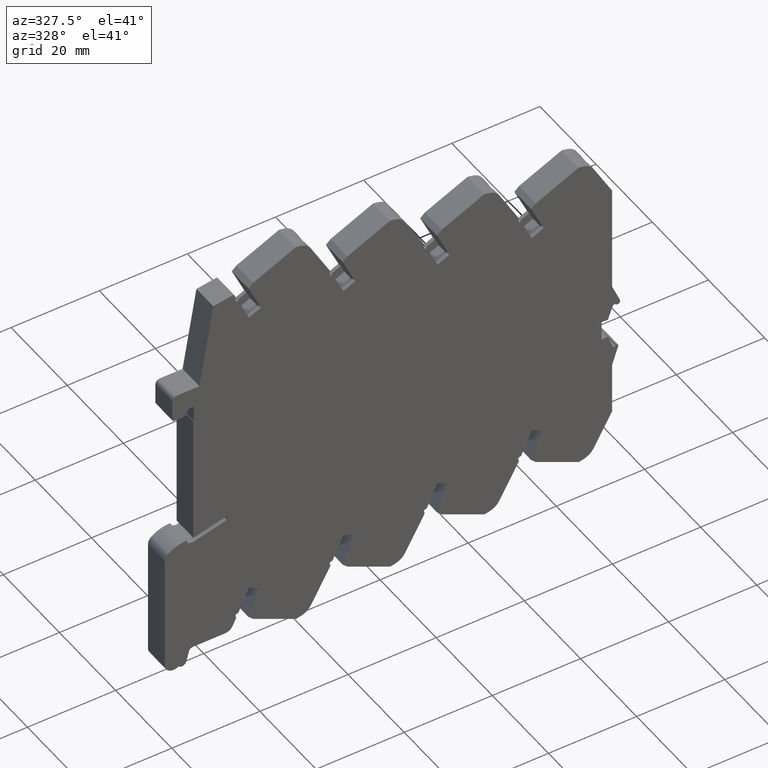
[diagram: clean part render]
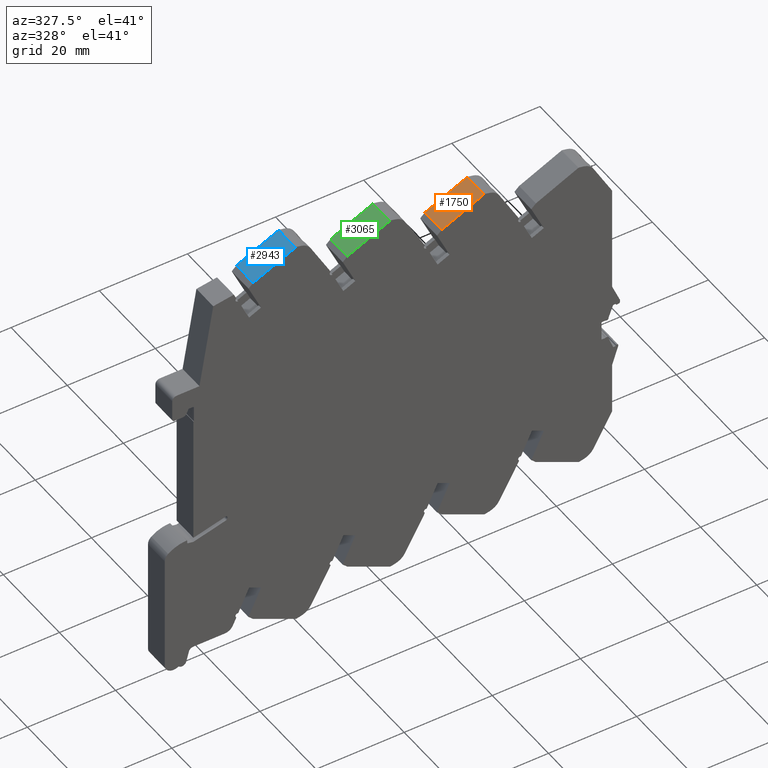
[diagram: same view with three faces highlighted in distinct colors, each labeled with its STEP entity id]
A machine part, auxiliary view with three faces highlighted in distinct colors.
Their STEP definitions:

[orange] entity #1750 — the highlighted planar face has unit normal (0.4226, 0, -0.9063).
#45 = LINE ( 'NONE', #6601, #1877 ) ;
#110 = CARTESIAN_POINT ( 'NONE',  ( -3.000000000000000000, 37.04256000000000171, 12.06949300000000669 ) ) ;
#648 = ORIENTED_EDGE ( 'NONE', *, *, #5057, .F. ) ;
#960 = LINE ( 'NONE', #6047, #2616 ) ;
#990 = VERTEX_POINT ( 'NONE', #6366 ) ;
#1356 = VERTEX_POINT ( 'NONE', #4484 ) ;
#1357 = LINE ( 'NONE', #2086, #5029 ) ;
#1750 = ADVANCED_FACE ( 'NONE', ( #4226 ), #4184, .F. ) ;
#1877 = VECTOR ( 'NONE', #8511, 1000.000000000000000 ) ;
#2086 = CARTESIAN_POINT ( 'NONE',  ( 3.000000000000000000, 37.04256000000000171, 12.06949300000000669 ) ) ;
#2087 = AXIS2_PLACEMENT_3D ( 'NONE', #7422, #4139, #3582 ) ;
#2170 = EDGE_CURVE ( 'NONE', #990, #7539, #5555, .T. ) ;
#2616 = VECTOR ( 'NONE', #7388, 1000.000000000000114 ) ;
#3582 = DIRECTION ( 'NONE',  ( 1.000000000000000000, 0.000000000000000000, 0.000000000000000000 ) ) ;
#3817 = EDGE_CURVE ( 'NONE', #7684, #1356, #960, .T. ) ;
#4139 = DIRECTION ( 'NONE',  ( 0.000000000000000000, -0.9063078068647751895, 0.4226182192191449971 ) ) ;
#4184 = PLANE ( 'NONE',  #2087 ) ;
#4226 = FACE_OUTER_BOUND ( 'NONE', #5897, .T. ) ;
#4484 = CARTESIAN_POINT ( 'NONE',  ( -3.000000000000000000, 41.52747229475459534, 21.68741963210341694 ) ) ;
#4768 = CARTESIAN_POINT ( 'NONE',  ( 3.000000000000000000, 37.04256000000000171, 12.06949300000000669 ) ) ;
#4828 = ORIENTED_EDGE ( 'NONE', *, *, #2170, .F. ) ;
#5029 = VECTOR ( 'NONE', #6619, 1000.000000000000000 ) ;
#5057 = EDGE_CURVE ( 'NONE', #7539, #1356, #45, .T. ) ;
#5555 = LINE ( 'NONE', #4768, #7714 ) ;
#5888 = ORIENTED_EDGE ( 'NONE', *, *, #3817, .T. ) ;
#5897 = EDGE_LOOP ( 'NONE', ( #5888, #648, #4828, #6706 ) ) ;
#6047 = CARTESIAN_POINT ( 'NONE',  ( -3.000000000000000000, 37.04256000000000171, 12.06949300000000669 ) ) ;
#6366 = CARTESIAN_POINT ( 'NONE',  ( 3.000000000000000000, 37.04256000000000171, 12.06949300000000669 ) ) ;
#6601 = CARTESIAN_POINT ( 'NONE',  ( 3.000000000000000000, 41.52747229475459534, 21.68741963210341694 ) ) ;
#6619 = DIRECTION ( 'NONE',  ( -1.000000000000000000, 0.000000000000000000, 0.000000000000000000 ) ) ;
#6706 = ORIENTED_EDGE ( 'NONE', *, *, #6858, .T. ) ;
#6804 = DIRECTION ( 'NONE',  ( 0.000000000000000000, 0.4226182192191450526, 0.9063078068647751895 ) ) ;
#6858 = EDGE_CURVE ( 'NONE', #990, #7684, #1357, .T. ) ;
#7167 = CARTESIAN_POINT ( 'NONE',  ( 3.000000000000000000, 41.52747229475459534, 21.68741963210341694 ) ) ;
#7388 = DIRECTION ( 'NONE',  ( 0.000000000000000000, 0.4226182192191450526, 0.9063078068647751895 ) ) ;
#7422 = CARTESIAN_POINT ( 'NONE',  ( 3.000000000000000000, 37.04256000000000171, 12.06949300000000669 ) ) ;
#7539 = VERTEX_POINT ( 'NONE', #7167 ) ;
#7684 = VERTEX_POINT ( 'NONE', #110 ) ;
#7714 = VECTOR ( 'NONE', #6804, 1000.000000000000114 ) ;
#8511 = DIRECTION ( 'NONE',  ( -1.000000000000000000, 0.000000000000000000, 0.000000000000000000 ) ) ;

[blue] entity #2943 — the highlighted planar face has unit normal (0.4226, 0, -0.9063).
#308 = DIRECTION ( 'NONE',  ( 0.000000000000000000, 0.4226182192191442755, 0.9063078068647755225 ) ) ;
#558 = EDGE_CURVE ( 'NONE', #7438, #3291, #817, .T. ) ;
#634 = FACE_OUTER_BOUND ( 'NONE', #8238, .T. ) ;
#674 = PLANE ( 'NONE',  #2912 ) ;
#724 = DIRECTION ( 'NONE',  ( 0.000000000000000000, -0.9063078068647757446, 0.4226182192191438314 ) ) ;
#817 = LINE ( 'NONE', #6080, #6928 ) ;
#1042 = LINE ( 'NONE', #8294, #7809 ) ;
#2398 = CARTESIAN_POINT ( 'NONE',  ( -3.000000000000000000, 48.06747229475460159, -21.08258036789659329 ) ) ;
#2507 = CARTESIAN_POINT ( 'NONE',  ( 3.000000000000000000, 48.06747229475460159, -21.08258036789659329 ) ) ;
#2912 = AXIS2_PLACEMENT_3D ( 'NONE', #7324, #724, #3355 ) ;
#2932 = DIRECTION ( 'NONE',  ( -1.000000000000000000, 0.000000000000000000, 0.000000000000000000 ) ) ;
#2943 = ADVANCED_FACE ( 'NONE', ( #634 ), #674, .F. ) ;
#3084 = ORIENTED_EDGE ( 'NONE', *, *, #7325, .F. ) ;
#3106 = CARTESIAN_POINT ( 'NONE',  ( 3.000000000000000000, 43.58256000000000085, -30.70050699999999111 ) ) ;
#3291 = VERTEX_POINT ( 'NONE', #2398 ) ;
#3355 = DIRECTION ( 'NONE',  ( 1.000000000000000000, 0.000000000000000000, 0.000000000000000000 ) ) ;
#3860 = LINE ( 'NONE', #8355, #8137 ) ;
#4011 = CARTESIAN_POINT ( 'NONE',  ( -3.000000000000000000, 43.58256000000000085, -30.70050699999999111 ) ) ;
#4196 = EDGE_CURVE ( 'NONE', #6129, #3291, #3860, .T. ) ;
#4830 = ORIENTED_EDGE ( 'NONE', *, *, #4196, .T. ) ;
#5908 = VERTEX_POINT ( 'NONE', #3106 ) ;
#5959 = ORIENTED_EDGE ( 'NONE', *, *, #558, .F. ) ;
#6080 = CARTESIAN_POINT ( 'NONE',  ( 3.000000000000000000, 48.06747229475460159, -21.08258036789659329 ) ) ;
#6129 = VERTEX_POINT ( 'NONE', #4011 ) ;
#6262 = ORIENTED_EDGE ( 'NONE', *, *, #7524, .T. ) ;
#6928 = VECTOR ( 'NONE', #2932, 1000.000000000000000 ) ;
#7324 = CARTESIAN_POINT ( 'NONE',  ( 3.000000000000000000, 43.58256000000000085, -30.70050699999999111 ) ) ;
#7325 = EDGE_CURVE ( 'NONE', #5908, #7438, #1042, .T. ) ;
#7438 = VERTEX_POINT ( 'NONE', #2507 ) ;
#7524 = EDGE_CURVE ( 'NONE', #5908, #6129, #7686, .T. ) ;
#7686 = LINE ( 'NONE', #7771, #8498 ) ;
#7771 = CARTESIAN_POINT ( 'NONE',  ( 3.000000000000000000, 43.58256000000000085, -30.70050699999999111 ) ) ;
#7809 = VECTOR ( 'NONE', #308, 1000.000000000000114 ) ;
#8137 = VECTOR ( 'NONE', #8312, 1000.000000000000114 ) ;
#8238 = EDGE_LOOP ( 'NONE', ( #4830, #5959, #3084, #6262 ) ) ;
#8294 = CARTESIAN_POINT ( 'NONE',  ( 3.000000000000000000, 43.58256000000000085, -30.70050699999999111 ) ) ;
#8312 = DIRECTION ( 'NONE',  ( 0.000000000000000000, 0.4226182192191442755, 0.9063078068647755225 ) ) ;
#8333 = DIRECTION ( 'NONE',  ( -1.000000000000000000, 0.000000000000000000, 0.000000000000000000 ) ) ;
#8355 = CARTESIAN_POINT ( 'NONE',  ( -3.000000000000000000, 43.58256000000000085, -30.70050699999999111 ) ) ;
#8498 = VECTOR ( 'NONE', #8333, 1000.000000000000000 ) ;

[green] entity #3065 — the highlighted planar face has unit normal (0.4226, 0, -0.9063).
#403 = EDGE_CURVE ( 'NONE', #1395, #6507, #3842, .T. ) ;
#658 = CARTESIAN_POINT ( 'NONE',  ( 3.000000000000000000, 40.31255999999999773, -9.315506999999993099 ) ) ;
#893 = DIRECTION ( 'NONE',  ( -1.000000000000000000, 0.000000000000000000, 0.000000000000000000 ) ) ;
#1395 = VERTEX_POINT ( 'NONE', #7129 ) ;
#1413 = CARTESIAN_POINT ( 'NONE',  ( -3.000000000000000000, 40.31255999999999773, -9.315506999999993099 ) ) ;
#1504 = ORIENTED_EDGE ( 'NONE', *, *, #5299, .F. ) ;
#1673 = EDGE_LOOP ( 'NONE', ( #2958, #6297, #1504, #8371 ) ) ;
#2296 = LINE ( 'NONE', #4276, #5366 ) ;
#2620 = FACE_OUTER_BOUND ( 'NONE', #1673, .T. ) ;
#2747 = PLANE ( 'NONE',  #4682 ) ;
#2789 = DIRECTION ( 'NONE',  ( 0.000000000000000000, -0.9063078068647748564, 0.4226182192191458853 ) ) ;
#2920 = LINE ( 'NONE', #4296, #3046 ) ;
#2958 = ORIENTED_EDGE ( 'NONE', *, *, #3922, .T. ) ;
#2966 = VERTEX_POINT ( 'NONE', #1413 ) ;
#3046 = VECTOR ( 'NONE', #893, 1000.000000000000000 ) ;
#3065 = ADVANCED_FACE ( 'NONE', ( #2620 ), #2747, .F. ) ;
#3086 = VECTOR ( 'NONE', #6470, 1000.000000000000000 ) ;
#3140 = EDGE_CURVE ( 'NONE', #3699, #2966, #2920, .T. ) ;
#3699 = VERTEX_POINT ( 'NONE', #658 ) ;
#3842 = LINE ( 'NONE', #6597, #3086 ) ;
#3922 = EDGE_CURVE ( 'NONE', #2966, #6507, #2296, .T. ) ;
#4140 = DIRECTION ( 'NONE',  ( 0.000000000000000000, 0.4226182192191458298, 0.9063078068647747454 ) ) ;
#4276 = CARTESIAN_POINT ( 'NONE',  ( -3.000000000000000000, 40.31255999999999773, -9.315506999999993099 ) ) ;
#4296 = CARTESIAN_POINT ( 'NONE',  ( 3.000000000000000000, 40.31255999999999773, -9.315506999999993099 ) ) ;
#4554 = DIRECTION ( 'NONE',  ( 1.000000000000000000, 0.000000000000000000, 0.000000000000000000 ) ) ;
#4682 = AXIS2_PLACEMENT_3D ( 'NONE', #6719, #2789, #4554 ) ;
#4780 = LINE ( 'NONE', #7425, #7528 ) ;
#5299 = EDGE_CURVE ( 'NONE', #3699, #1395, #4780, .T. ) ;
#5366 = VECTOR ( 'NONE', #8298, 1000.000000000000114 ) ;
#6297 = ORIENTED_EDGE ( 'NONE', *, *, #403, .F. ) ;
#6470 = DIRECTION ( 'NONE',  ( -1.000000000000000000, 0.000000000000000000, 0.000000000000000000 ) ) ;
#6507 = VERTEX_POINT ( 'NONE', #7619 ) ;
#6597 = CARTESIAN_POINT ( 'NONE',  ( 3.000000000000000000, 44.79747229475459847, 0.3024196321034094970 ) ) ;
#6719 = CARTESIAN_POINT ( 'NONE',  ( 3.000000000000000000, 40.31255999999999773, -9.315506999999993099 ) ) ;
#7129 = CARTESIAN_POINT ( 'NONE',  ( 3.000000000000000000, 44.79747229475459847, 0.3024196321034094970 ) ) ;
#7425 = CARTESIAN_POINT ( 'NONE',  ( 3.000000000000000000, 40.31255999999999773, -9.315506999999993099 ) ) ;
#7528 = VECTOR ( 'NONE', #4140, 1000.000000000000114 ) ;
#7619 = CARTESIAN_POINT ( 'NONE',  ( -3.000000000000000000, 44.79747229475459847, 0.3024196321034094970 ) ) ;
#8298 = DIRECTION ( 'NONE',  ( 0.000000000000000000, 0.4226182192191458298, 0.9063078068647747454 ) ) ;
#8371 = ORIENTED_EDGE ( 'NONE', *, *, #3140, .T. ) ;